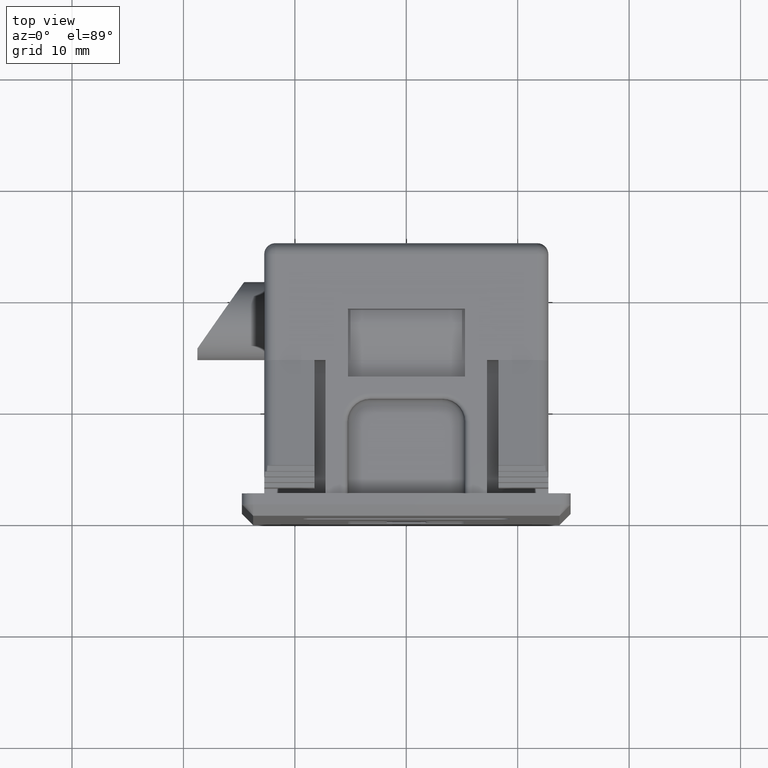
[diagram: clean part render]
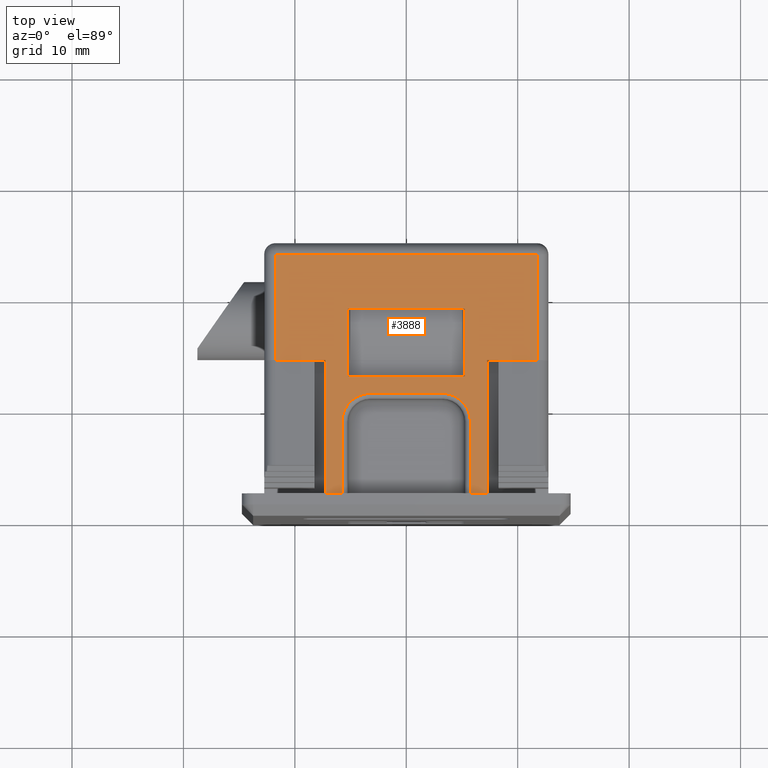
[diagram: same view with one face highlighted and labeled with its STEP entity id]
A machine part, top view. The second image highlights one B-rep face of the part: STEP entity #3888.
In plain terms, the highlighted planar face has unit normal (0, 0, 1).
Its self-contained STEP definition (entity closure, byte-faithful):
#131 = DIRECTION ( 'NONE',  ( 1.000000000000000000, -2.449293598294704900E-016, 0.0000000000000000000 ) ) ;
#214 = CARTESIAN_POINT ( 'NONE',  ( -11.74999999999983800, 1002.000000000000000, 23.25000000000000000 ) ) ;
#224 = LINE ( 'NONE', #6095, #1422 ) ;
#328 = VECTOR ( 'NONE', #4445, 1000.000000000000000 ) ;
#348 = EDGE_CURVE ( 'NONE', #5588, #1257, #4631, .T. ) ;
#352 = VERTEX_POINT ( 'NONE', #5894 ) ;
#370 = CARTESIAN_POINT ( 'NONE',  ( 8.250000000000000000, 14.00000000000912000, 23.25000000002445000 ) ) ;
#414 = LINE ( 'NONE', #6174, #5619 ) ;
#417 = CARTESIAN_POINT ( 'NONE',  ( 13.24999999999677900, 12.49999999999740100, 23.25000000000000000 ) ) ;
#480 = EDGE_CURVE ( 'NONE', #2783, #1797, #1139, .T. ) ;
#520 = CARTESIAN_POINT ( 'NONE',  ( 13.25000000000000000, 18.59999999999740100, 23.25000000000000000 ) ) ;
#522 = VECTOR ( 'NONE', #4063, 1000.000000000000000 ) ;
#609 = FACE_BOUND ( 'NONE', #5986, .T. ) ;
#626 = VERTEX_POINT ( 'NONE', #4797 ) ;
#753 = PLANE ( 'NONE',  #3774 ) ;
#814 = CARTESIAN_POINT ( 'NONE',  ( -7.250000000000200700, 14.00000000000912000, 23.25000000002445000 ) ) ;
#902 = ORIENTED_EDGE ( 'NONE', *, *, #5569, .T. ) ;
#931 = CARTESIAN_POINT ( 'NONE',  ( 5.250000000000000000, 12.49999999999736000, 23.24999999999024800 ) ) ;
#935 = EDGE_CURVE ( 'NONE', #3848, #1212, #6553, .T. ) ;
#942 = LINE ( 'NONE', #1593, #6023 ) ;
#969 = EDGE_CURVE ( 'NONE', #6162, #3170, #2361, .T. ) ;
#983 = VERTEX_POINT ( 'NONE', #5907 ) ;
#1139 = LINE ( 'NONE', #6279, #3666 ) ;
#1174 = CARTESIAN_POINT ( 'NONE',  ( -7.250000000000200700, 14.00000000000912000, 23.25000000002445000 ) ) ;
#1212 = VERTEX_POINT ( 'NONE', #1982 ) ;
#1215 = ORIENTED_EDGE ( 'NONE', *, *, #3343, .T. ) ;
#1257 = VERTEX_POINT ( 'NONE', #1478 ) ;
#1272 = DIRECTION ( 'NONE',  ( 0.0000000000000000000, 0.0000000000000000000, 1.000000000000000000 ) ) ;
#1338 = VECTOR ( 'NONE', #4343, 1000.000000000000000 ) ;
#1405 = AXIS2_PLACEMENT_3D ( 'NONE', #5969, #2932, #6481 ) ;
#1422 = VECTOR ( 'NONE', #3069, 1000.000000000000000 ) ;
#1478 = CARTESIAN_POINT ( 'NONE',  ( -11.74999999999981900, 14.00000000000912000, 23.25000000002425100 ) ) ;
#1520 = CIRCLE ( 'NONE', #1405, 2.500000000000000000 ) ;
#1526 = VERTEX_POINT ( 'NONE', #4889 ) ;
#1548 = ORIENTED_EDGE ( 'NONE', *, *, #1550, .T. ) ;
#1550 = EDGE_CURVE ( 'NONE', #1619, #352, #5595, .T. ) ;
#1593 = CARTESIAN_POINT ( 'NONE',  ( 5.250000000000000000, 1002.000000000000000, 23.25000000000000000 ) ) ;
#1603 = LINE ( 'NONE', #214, #4454 ) ;
#1619 = VERTEX_POINT ( 'NONE', #5535 ) ;
#1621 = CARTESIAN_POINT ( 'NONE',  ( -8.250000000000000000, 14.00000000000912000, 23.25000000002425100 ) ) ;
#1641 = EDGE_CURVE ( 'NONE', #983, #3281, #2432, .T. ) ;
#1695 = VECTOR ( 'NONE', #1769, 1000.000000000000000 ) ;
#1747 = VECTOR ( 'NONE', #5970, 1000.000000000000000 ) ;
#1769 = DIRECTION ( 'NONE',  ( 1.000000000000000000, -0.0000000000000000000, -0.0000000000000000000 ) ) ;
#1790 = VECTOR ( 'NONE', #2861, 1000.000000000000000 ) ;
#1797 = VERTEX_POINT ( 'NONE', #4665 ) ;
#1830 = EDGE_CURVE ( 'NONE', #4990, #352, #5361, .T. ) ;
#1866 = ORIENTED_EDGE ( 'NONE', *, *, #1641, .T. ) ;
#1974 = EDGE_CURVE ( 'NONE', #1212, #2424, #3056, .T. ) ;
#1982 = CARTESIAN_POINT ( 'NONE',  ( -5.250000000000000000, 18.59999999999735100, 23.24999999999024800 ) ) ;
#2015 = ORIENTED_EDGE ( 'NONE', *, *, #5851, .F. ) ;
#2099 = DIRECTION ( 'NONE',  ( 0.0000000000000000000, -1.000000000000000000, 0.0000000000000000000 ) ) ;
#2168 = ORIENTED_EDGE ( 'NONE', *, *, #3942, .F. ) ;
#2210 = DIRECTION ( 'NONE',  ( 0.0000000000000000000, -1.000000000000000000, 0.0000000000000000000 ) ) ;
#2216 = VECTOR ( 'NONE', #6032, 1000.000000000000000 ) ;
#2244 = LINE ( 'NONE', #2864, #3268 ) ;
#2260 = EDGE_CURVE ( 'NONE', #1526, #3673, #6191, .T. ) ;
#2299 = CARTESIAN_POINT ( 'NONE',  ( 3.250000000000000000, 8.499999999997498900, 23.25000000000000000 ) ) ;
#2361 = LINE ( 'NONE', #814, #3694 ) ;
#2373 = CARTESIAN_POINT ( 'NONE',  ( 5.750000000000000000, 1002.000000000000000, 23.25000000000000000 ) ) ;
#2408 = ORIENTED_EDGE ( 'NONE', *, *, #935, .T. ) ;
#2424 = VERTEX_POINT ( 'NONE', #6025 ) ;
#2432 = LINE ( 'NONE', #5566, #4979 ) ;
#2636 = ORIENTED_EDGE ( 'NONE', *, *, #480, .T. ) ;
#2709 = ORIENTED_EDGE ( 'NONE', *, *, #3264, .F. ) ;
#2783 = VERTEX_POINT ( 'NONE', #4430 ) ;
#2803 = DIRECTION ( 'NONE',  ( 1.000000000000000000, 0.0000000000000000000, 0.0000000000000000000 ) ) ;
#2814 = DIRECTION ( 'NONE',  ( -1.000000000000000000, 0.0000000000000000000, 0.0000000000000000000 ) ) ;
#2861 = DIRECTION ( 'NONE',  ( -1.000000000000000000, 0.0000000000000000000, 0.0000000000000000000 ) ) ;
#2864 = CARTESIAN_POINT ( 'NONE',  ( -986.7500000000000000, 14.00000000000936100, 23.25000000002445000 ) ) ;
#2879 = DIRECTION ( 'NONE',  ( -0.0000000000000000000, -1.000000000000000000, -0.0000000000000000000 ) ) ;
#2883 = ORIENTED_EDGE ( 'NONE', *, *, #4854, .T. ) ;
#2923 = LINE ( 'NONE', #2933, #1747 ) ;
#2932 = DIRECTION ( 'NONE',  ( -0.0000000000000000000, -0.0000000000000000000, -1.000000000000000000 ) ) ;
#2933 = CARTESIAN_POINT ( 'NONE',  ( 0.0000000000000000000, 1.999999999999715100, 23.25000000000000000 ) ) ;
#2963 = EDGE_CURVE ( 'NONE', #4565, #1257, #1603, .T. ) ;
#2995 = CARTESIAN_POINT ( 'NONE',  ( 7.250000000000200700, 14.00000000000912000, 23.25000000002445000 ) ) ;
#3056 = LINE ( 'NONE', #520, #522 ) ;
#3069 = DIRECTION ( 'NONE',  ( -1.000000000000000000, -0.0000000000000000000, -0.0000000000000000000 ) ) ;
#3159 = CARTESIAN_POINT ( 'NONE',  ( -5.250000000000000000, 12.49999999999740100, 23.24999999999024800 ) ) ;
#3170 = VERTEX_POINT ( 'NONE', #6477 ) ;
#3264 = EDGE_CURVE ( 'NONE', #626, #4990, #6257, .T. ) ;
#3268 = VECTOR ( 'NONE', #3886, 1000.000000000000000 ) ;
#3281 = VERTEX_POINT ( 'NONE', #4615 ) ;
#3343 = EDGE_CURVE ( 'NONE', #4391, #2783, #414, .T. ) ;
#3354 = ORIENTED_EDGE ( 'NONE', *, *, #969, .T. ) ;
#3514 = ORIENTED_EDGE ( 'NONE', *, *, #348, .F. ) ;
#3583 = ORIENTED_EDGE ( 'NONE', *, *, #1974, .T. ) ;
#3662 = ORIENTED_EDGE ( 'NONE', *, *, #2963, .T. ) ;
#3665 = AXIS2_PLACEMENT_3D ( 'NONE', #2299, #5838, #2803 ) ;
#3666 = VECTOR ( 'NONE', #3744, 1000.000000000000000 ) ;
#3673 = VERTEX_POINT ( 'NONE', #4027 ) ;
#3694 = VECTOR ( 'NONE', #5400, 1000.000000000000000 ) ;
#3716 = EDGE_LOOP ( 'NONE', ( #2636, #6364, #3662, #3514, #2168, #3354, #2015, #1866, #5729, #5575, #2883, #1548, #4068, #2709, #3914, #1215 ) ) ;
#3733 = EDGE_CURVE ( 'NONE', #1797, #4565, #224, .T. ) ;
#3744 = DIRECTION ( 'NONE',  ( -0.0000000000000000000, 1.000000000000000000, -0.0000000000000000000 ) ) ;
#3774 = AXIS2_PLACEMENT_3D ( 'NONE', #4297, #1272, #4815 ) ;
#3848 = VERTEX_POINT ( 'NONE', #3159 ) ;
#3886 = DIRECTION ( 'NONE',  ( 1.000000000000000000, -2.449293598294704900E-016, 0.0000000000000000000 ) ) ;
#3888 = ADVANCED_FACE ( 'NONE', ( #4811, #609 ), #753, .T. ) ;
#3914 = ORIENTED_EDGE ( 'NONE', *, *, #5195, .T. ) ;
#3942 = EDGE_CURVE ( 'NONE', #6162, #5588, #6153, .T. ) ;
#4027 = CARTESIAN_POINT ( 'NONE',  ( 3.250000000000000000, 10.99999999999749900, 23.25000000000000000 ) ) ;
#4039 = LINE ( 'NONE', #417, #328 ) ;
#4063 = DIRECTION ( 'NONE',  ( 1.000000000000000000, 0.0000000000000000000, 0.0000000000000000000 ) ) ;
#4068 = ORIENTED_EDGE ( 'NONE', *, *, #1830, .F. ) ;
#4071 = CARTESIAN_POINT ( 'NONE',  ( -11.75000000000000000, 23.49999999999229800, 23.25000000000000000 ) ) ;
#4155 = CIRCLE ( 'NONE', #3665, 2.500000000000000000 ) ;
#4192 = CARTESIAN_POINT ( 'NONE',  ( 7.250000000000200700, 1.999999999999715100, 23.25000000005890000 ) ) ;
#4248 = VECTOR ( 'NONE', #2879, 1000.000000000000000 ) ;
#4297 = CARTESIAN_POINT ( 'NONE',  ( 13.25000000000000000, 1002.000000000000000, 23.25000000000000000 ) ) ;
#4343 = DIRECTION ( 'NONE',  ( 0.0000000000000000000, 1.000000000000000000, 0.0000000000000000000 ) ) ;
#4391 = VERTEX_POINT ( 'NONE', #370 ) ;
#4430 = CARTESIAN_POINT ( 'NONE',  ( 11.74999999999981900, 14.00000000000912000, 23.25000000002425100 ) ) ;
#4445 = DIRECTION ( 'NONE',  ( -1.000000000000000000, 3.139023432719935300E-015, 0.0000000000000000000 ) ) ;
#4454 = VECTOR ( 'NONE', #2210, 1000.000000000000000 ) ;
#4456 = VERTEX_POINT ( 'NONE', #931 ) ;
#4495 = VECTOR ( 'NONE', #2814, 1000.000000000000000 ) ;
#4565 = VERTEX_POINT ( 'NONE', #4071 ) ;
#4615 = CARTESIAN_POINT ( 'NONE',  ( -5.750000000000000000, 8.499999999997498900, 23.25000000000000000 ) ) ;
#4631 = LINE ( 'NONE', #5369, #1790 ) ;
#4665 = CARTESIAN_POINT ( 'NONE',  ( 11.75000000000000000, 23.49999999999229800, 23.25000000000000000 ) ) ;
#4797 = CARTESIAN_POINT ( 'NONE',  ( 7.250000000000200700, 14.00000000000912000, 23.25000000002445000 ) ) ;
#4811 = FACE_OUTER_BOUND ( 'NONE', #3716, .T. ) ;
#4815 = DIRECTION ( 'NONE',  ( 1.000000000000000000, 0.0000000000000000000, 0.0000000000000000000 ) ) ;
#4854 = EDGE_CURVE ( 'NONE', #3673, #1619, #4155, .T. ) ;
#4889 = CARTESIAN_POINT ( 'NONE',  ( -3.250000000000000000, 10.99999999999749900, 23.25000000000000000 ) ) ;
#4979 = VECTOR ( 'NONE', #5089, 1000.000000000000000 ) ;
#4990 = VERTEX_POINT ( 'NONE', #4192 ) ;
#5089 = DIRECTION ( 'NONE',  ( -0.0000000000000000000, 1.000000000000000000, -0.0000000000000000000 ) ) ;
#5108 = ORIENTED_EDGE ( 'NONE', *, *, #5268, .T. ) ;
#5195 = EDGE_CURVE ( 'NONE', #626, #4391, #2244, .T. ) ;
#5215 = VECTOR ( 'NONE', #5245, 1000.000000000000000 ) ;
#5243 = EDGE_CURVE ( 'NONE', #3281, #1526, #1520, .T. ) ;
#5245 = DIRECTION ( 'NONE',  ( -1.000000000000000000, 0.0000000000000000000, 0.0000000000000000000 ) ) ;
#5268 = EDGE_CURVE ( 'NONE', #4456, #3848, #4039, .T. ) ;
#5361 = LINE ( 'NONE', #5740, #5215 ) ;
#5369 = CARTESIAN_POINT ( 'NONE',  ( 986.7500000000000000, 14.00000000000912000, 23.25000000002425100 ) ) ;
#5400 = DIRECTION ( 'NONE',  ( -0.0000000000000000000, -1.000000000000000000, 2.868943508684060000E-012 ) ) ;
#5535 = CARTESIAN_POINT ( 'NONE',  ( 5.750000000000000000, 8.499999999997498900, 23.25000000000000000 ) ) ;
#5566 = CARTESIAN_POINT ( 'NONE',  ( -5.750000000000000000, 1002.000000000000000, 23.25000000000000000 ) ) ;
#5569 = EDGE_CURVE ( 'NONE', #2424, #4456, #942, .T. ) ;
#5575 = ORIENTED_EDGE ( 'NONE', *, *, #2260, .T. ) ;
#5588 = VERTEX_POINT ( 'NONE', #1621 ) ;
#5595 = LINE ( 'NONE', #2373, #4248 ) ;
#5619 = VECTOR ( 'NONE', #131, 1000.000000000000000 ) ;
#5729 = ORIENTED_EDGE ( 'NONE', *, *, #5243, .T. ) ;
#5740 = CARTESIAN_POINT ( 'NONE',  ( 0.0000000000000000000, 1.999999999999715100, 23.25000000000000000 ) ) ;
#5804 = CARTESIAN_POINT ( 'NONE',  ( 13.25000000000000000, 10.99999999999746000, 23.25000000000000000 ) ) ;
#5838 = DIRECTION ( 'NONE',  ( -0.0000000000000000000, -0.0000000000000000000, -1.000000000000000000 ) ) ;
#5851 = EDGE_CURVE ( 'NONE', #983, #3170, #2923, .T. ) ;
#5894 = CARTESIAN_POINT ( 'NONE',  ( 5.750000000000000000, 1.999999999999715100, 23.25000000000000000 ) ) ;
#5907 = CARTESIAN_POINT ( 'NONE',  ( -5.750000000000000000, 1.999999999999715100, 23.25000000000000000 ) ) ;
#5956 = CARTESIAN_POINT ( 'NONE',  ( -5.250000000000000000, 1002.000000000000000, 23.25000000000000000 ) ) ;
#5969 = CARTESIAN_POINT ( 'NONE',  ( -3.250000000000000000, 8.499999999997498900, 23.25000000000000000 ) ) ;
#5970 = DIRECTION ( 'NONE',  ( -1.000000000000000000, 0.0000000000000000000, 0.0000000000000000000 ) ) ;
#5986 = EDGE_LOOP ( 'NONE', ( #5108, #2408, #3583, #902 ) ) ;
#6023 = VECTOR ( 'NONE', #2099, 1000.000000000000000 ) ;
#6025 = CARTESIAN_POINT ( 'NONE',  ( 5.250000000000000000, 18.59999999999735100, 23.24999999999024800 ) ) ;
#6032 = DIRECTION ( 'NONE',  ( -2.449293598294704900E-016, -1.000000000000000000, 2.868943508684060000E-012 ) ) ;
#6095 = CARTESIAN_POINT ( 'NONE',  ( 12.25000000000000000, 23.49999999999629800, 23.25000000000000000 ) ) ;
#6153 = LINE ( 'NONE', #6354, #4495 ) ;
#6162 = VERTEX_POINT ( 'NONE', #1174 ) ;
#6174 = CARTESIAN_POINT ( 'NONE',  ( -986.7500000000000000, 14.00000000000936100, 23.25000000002425100 ) ) ;
#6191 = LINE ( 'NONE', #5804, #1695 ) ;
#6257 = LINE ( 'NONE', #2995, #2216 ) ;
#6279 = CARTESIAN_POINT ( 'NONE',  ( 11.74999999999983800, 22.49999999999739900, 23.25000000000000000 ) ) ;
#6354 = CARTESIAN_POINT ( 'NONE',  ( 986.7500000000000000, 14.00000000000912000, 23.25000000002445000 ) ) ;
#6364 = ORIENTED_EDGE ( 'NONE', *, *, #3733, .T. ) ;
#6477 = CARTESIAN_POINT ( 'NONE',  ( -7.250000000000200700, 1.999999999999715100, 23.25000000005890000 ) ) ;
#6481 = DIRECTION ( 'NONE',  ( 1.000000000000000000, 0.0000000000000000000, 0.0000000000000000000 ) ) ;
#6553 = LINE ( 'NONE', #5956, #1338 ) ;